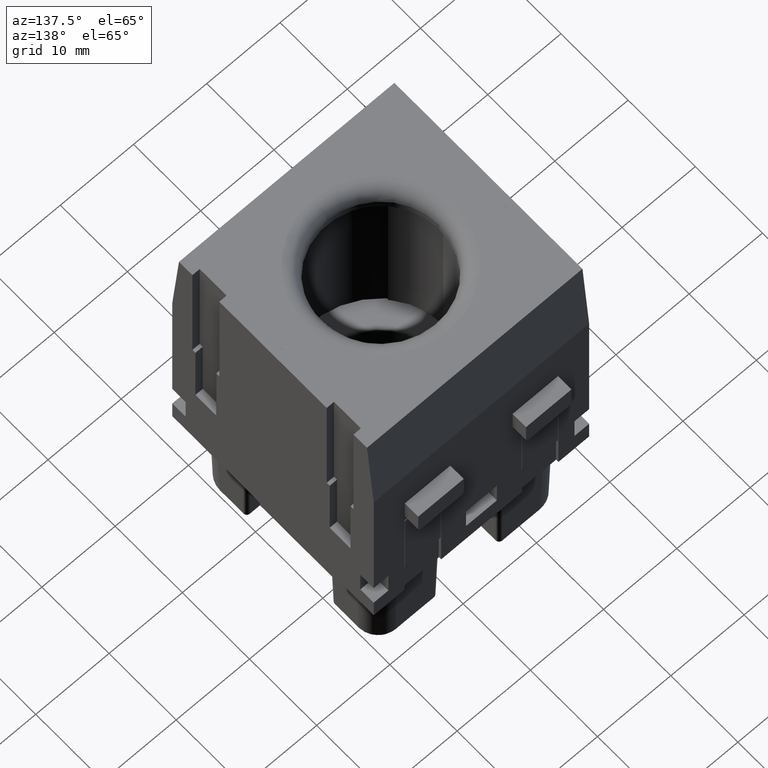
[diagram: clean part render]
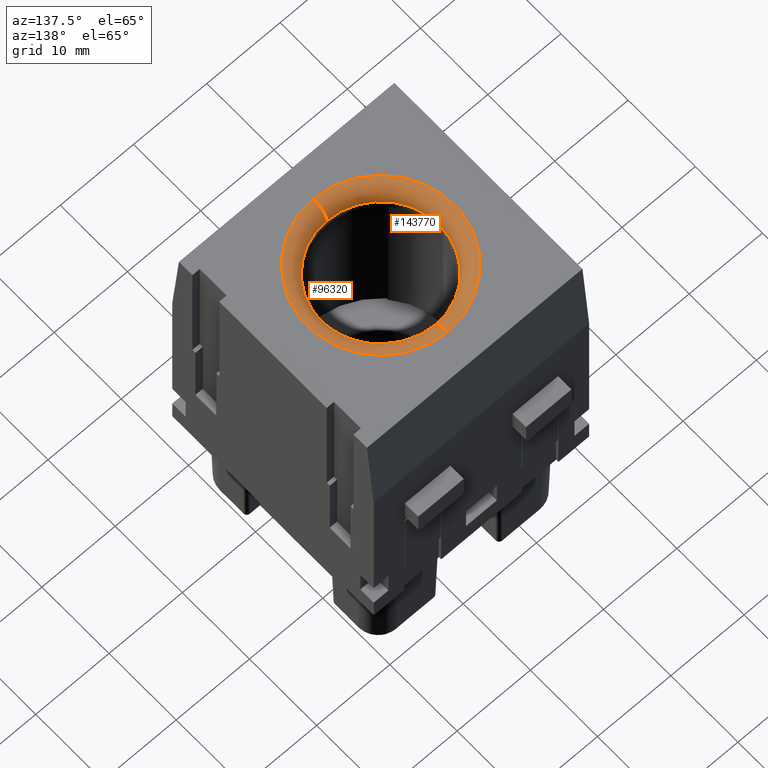
[diagram: same view with one multi-face feature highlighted, each face labeled with its STEP entity id]
A machine part, auxiliary view. The highlighted faces form ONE feature: a constant-radius fillet chain: 2 tangent blend faces with common blend radius 2 mm. The faces share edges in the B-rep.
Their STEP definitions:
[1] entity #96320 (Torus):
#3980=CARTESIAN_POINT('',(41.347735,94.057183,-17.0000000000002));
#3990=DIRECTION('',(5.42358974422539E-31,1.,-2.40665319221843E-15));
#4000=DIRECTION('',(0.,2.40665319221843E-15,1.));
#4010=AXIS2_PLACEMENT_3D('',#3980,#3990,#4000);
#4020=CIRCLE('',#4010,8.);
#4030=CARTESIAN_POINT('',(41.347735,94.057183,-9.00000000000017));
#4040=VERTEX_POINT('',#4030);
#4070=CARTESIAN_POINT('',(33.347735,94.057183,-17.0000000000002));
#4080=VERTEX_POINT('',#4070);
#4090=EDGE_CURVE('',#4080,#4040,#4020,.T.);
#45700=CARTESIAN_POINT('',(41.347735,96.057183,-17.0000000000002));
#45710=DIRECTION('',(5.42358974422539E-31,1.,-2.40665319221843E-15));
#45720=DIRECTION('',(-2.36206960678618E-46,2.40665319221843E-15,1.));
#45730=AXIS2_PLACEMENT_3D('',#45700,#45710,#45720);
#45740=CIRCLE('',#45730,9.99999999999999);
#45750=CARTESIAN_POINT('',(41.347735,96.057183,-27.0000000000002));
#45760=VERTEX_POINT('',#45750);
#45770=CARTESIAN_POINT('',(41.347735,96.057183,-7.00000000000018));
#45780=VERTEX_POINT('',#45770);
#45790=EDGE_CURVE('',#45760,#45780,#45740,.T.);
#96050=CARTESIAN_POINT('',(41.347735,94.057183,-17.0000000000002));
#96060=DIRECTION('',(5.42358974422539E-31,1.,-2.40665319221843E-15));
#96070=DIRECTION('',(5.34531498221849E-46,2.40665319221843E-15,1.));
#96080=AXIS2_PLACEMENT_3D('',#96050,#96060,#96070);
#96090=TOROIDAL_SURFACE('',#96080,10.,2.);
#96100=CARTESIAN_POINT('',(41.347735,94.057183,-7.00000000000017));
#96110=DIRECTION('',(1.,-5.42358974422539E-31,1.30526995712231E-45));
#96120=DIRECTION('',(5.42358974422539E-31,1.,1.11022302462516E-16));
#96130=AXIS2_PLACEMENT_3D('',#96100,#96110,#96120);
#96140=CIRCLE('',#96130,2.);
#96150=EDGE_CURVE('',#4040,#45780,#96140,.T.);
#96160=ORIENTED_EDGE('',*,*,#96150,.F.);
#96170=ORIENTED_EDGE('',*,*,#45790,.T.);
#96180=CARTESIAN_POINT('',(41.347735,94.057183,-27.0000000000002));
#96190=DIRECTION('',(-1.,5.42358974422539E-31,-1.30526995712231E-45));
#96200=DIRECTION('',(5.42358974422539E-31,1.,-4.92432868689937E-15));
#96210=AXIS2_PLACEMENT_3D('',#96180,#96190,#96200);
#96220=CIRCLE('',#96210,2.);
#96230=CARTESIAN_POINT('',(41.347735,94.057183,-25.0000000000002));
#96240=VERTEX_POINT('',#96230);
#96250=EDGE_CURVE('',#96240,#45760,#96220,.T.);
#96260=ORIENTED_EDGE('',*,*,#96250,.T.);
#96270=EDGE_CURVE('',#96240,#4080,#4020,.T.);
#96280=ORIENTED_EDGE('',*,*,#96270,.F.);
#96290=ORIENTED_EDGE('',*,*,#4090,.F.);
#96300=EDGE_LOOP('',(#96290,#96280,#96260,#96170,#96160));
#96310=FACE_OUTER_BOUND('',#96300,.T.);
#96320=ADVANCED_FACE('',(#96310),#96090,.T.);
[2] entity #143770 (Torus):
#3940=CARTESIAN_POINT('',(49.347735,94.057183,-17.0000000000002));
#3950=VERTEX_POINT('',#3940);
#3980=CARTESIAN_POINT('',(41.347735,94.057183,-17.0000000000002));
#3990=DIRECTION('',(5.42358974422539E-31,1.,-2.40665319221843E-15));
#4000=DIRECTION('',(0.,2.40665319221843E-15,1.));
#4010=AXIS2_PLACEMENT_3D('',#3980,#3990,#4000);
#4020=CIRCLE('',#4010,8.);
#4030=CARTESIAN_POINT('',(41.347735,94.057183,-9.00000000000017));
#4040=VERTEX_POINT('',#4030);
#4050=EDGE_CURVE('',#4040,#3950,#4020,.T.);
#45700=CARTESIAN_POINT('',(41.347735,96.057183,-17.0000000000002));
#45710=DIRECTION('',(5.42358974422539E-31,1.,-2.40665319221843E-15));
#45720=DIRECTION('',(-2.36206960678618E-46,2.40665319221843E-15,1.));
#45730=AXIS2_PLACEMENT_3D('',#45700,#45710,#45720);
#45740=CIRCLE('',#45730,9.99999999999999);
#45750=CARTESIAN_POINT('',(41.347735,96.057183,-27.0000000000002));
#45760=VERTEX_POINT('',#45750);
#45770=CARTESIAN_POINT('',(41.347735,96.057183,-7.00000000000018));
#45780=VERTEX_POINT('',#45770);
#45810=EDGE_CURVE('',#45780,#45760,#45740,.T.);
#96050=CARTESIAN_POINT('',(41.347735,94.057183,-17.0000000000002));
#96060=DIRECTION('',(5.42358974422539E-31,1.,-2.40665319221843E-15));
#96070=DIRECTION('',(5.34531498221849E-46,2.40665319221843E-15,1.));
#96080=AXIS2_PLACEMENT_3D('',#96050,#96060,#96070);
#96090=TOROIDAL_SURFACE('',#96080,10.,2.);
#96100=CARTESIAN_POINT('',(41.347735,94.057183,-7.00000000000017));
#96110=DIRECTION('',(1.,-5.42358974422539E-31,1.30526995712231E-45));
#96120=DIRECTION('',(5.42358974422539E-31,1.,1.11022302462516E-16));
#96130=AXIS2_PLACEMENT_3D('',#96100,#96110,#96120);
#96140=CIRCLE('',#96130,2.);
#96150=EDGE_CURVE('',#4040,#45780,#96140,.T.);
#96180=CARTESIAN_POINT('',(41.347735,94.057183,-27.0000000000002));
#96190=DIRECTION('',(-1.,5.42358974422539E-31,-1.30526995712231E-45));
#96200=DIRECTION('',(5.42358974422539E-31,1.,-4.92432868689937E-15));
#96210=AXIS2_PLACEMENT_3D('',#96180,#96190,#96200);
#96220=CIRCLE('',#96210,2.);
#96230=CARTESIAN_POINT('',(41.347735,94.057183,-25.0000000000002));
#96240=VERTEX_POINT('',#96230);
#96250=EDGE_CURVE('',#96240,#45760,#96220,.T.);
#142800=EDGE_CURVE('',#3950,#96240,#4020,.T.);
#143700=ORIENTED_EDGE('',*,*,#96150,.T.);
#143710=ORIENTED_EDGE('',*,*,#4050,.F.);
#143720=ORIENTED_EDGE('',*,*,#142800,.F.);
#143730=ORIENTED_EDGE('',*,*,#96250,.F.);
#143740=ORIENTED_EDGE('',*,*,#45810,.T.);
#143750=EDGE_LOOP('',(#143740,#143730,#143720,#143710,#143700));
#143760=FACE_OUTER_BOUND('',#143750,.T.);
#143770=ADVANCED_FACE('',(#143760),#96090,.T.);